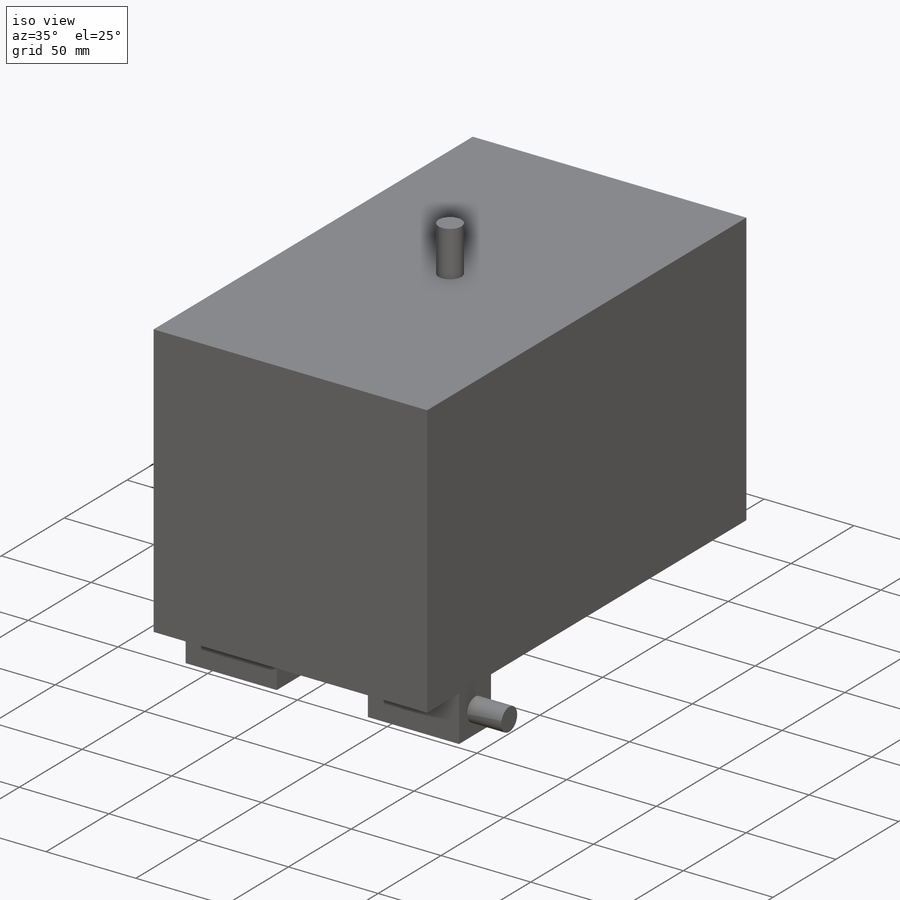
[diagram: iso view]
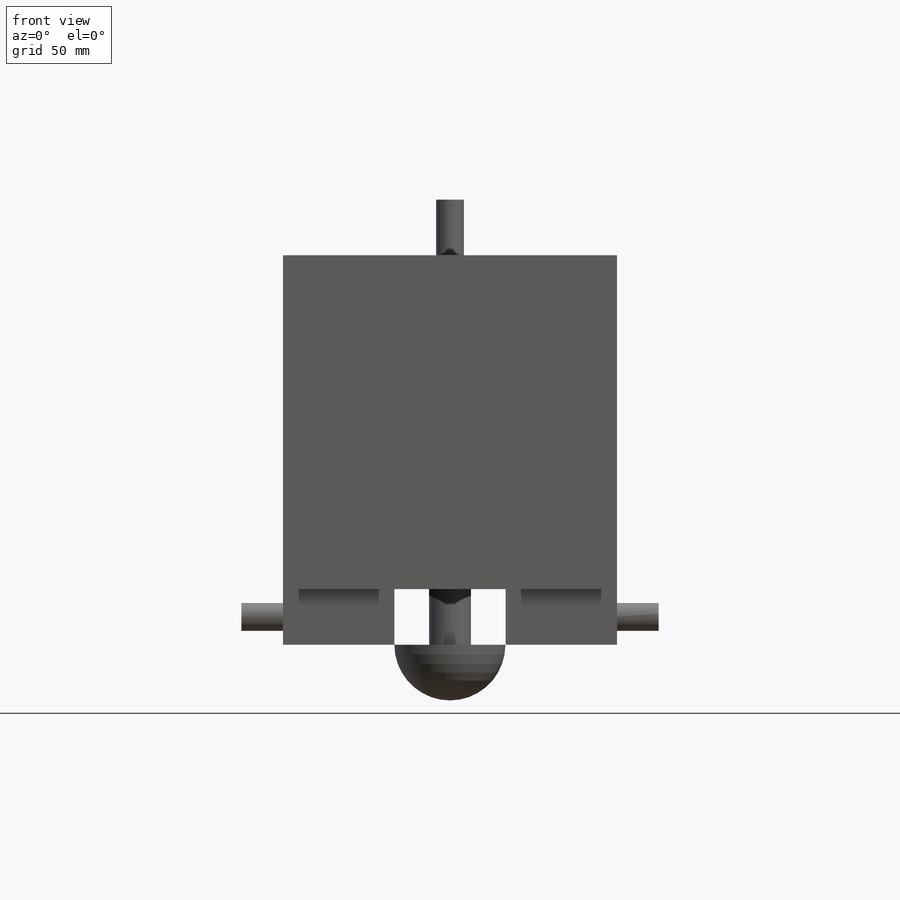
[diagram: front view]
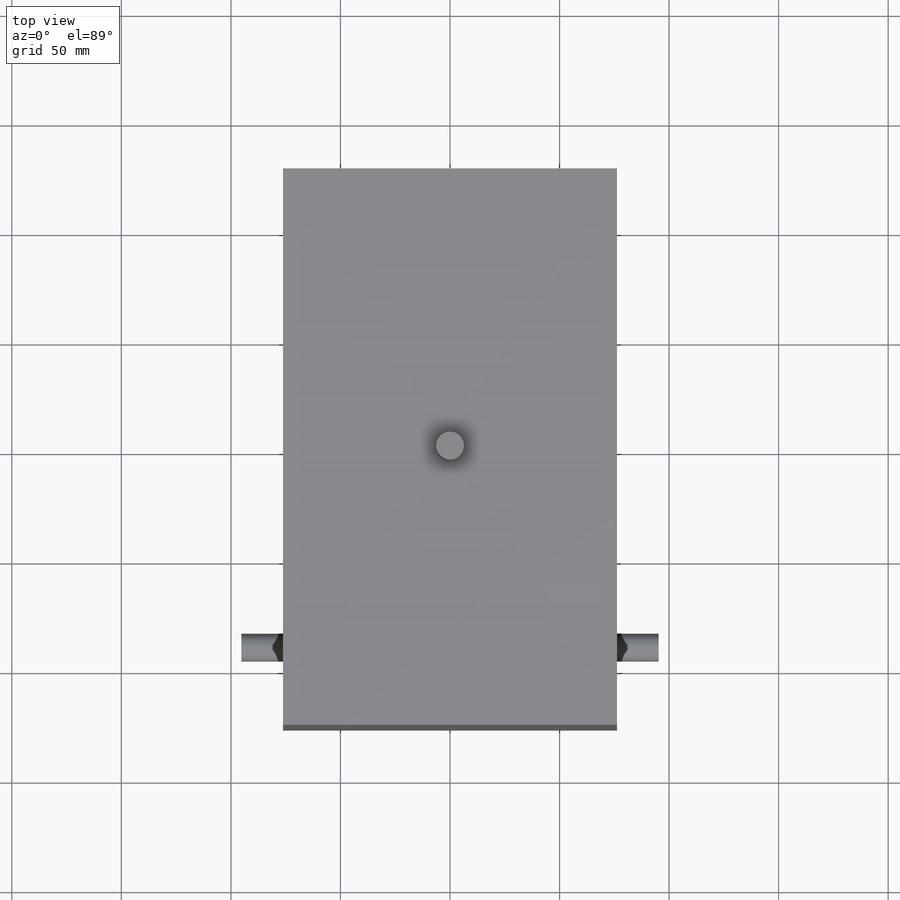
[diagram: top view]
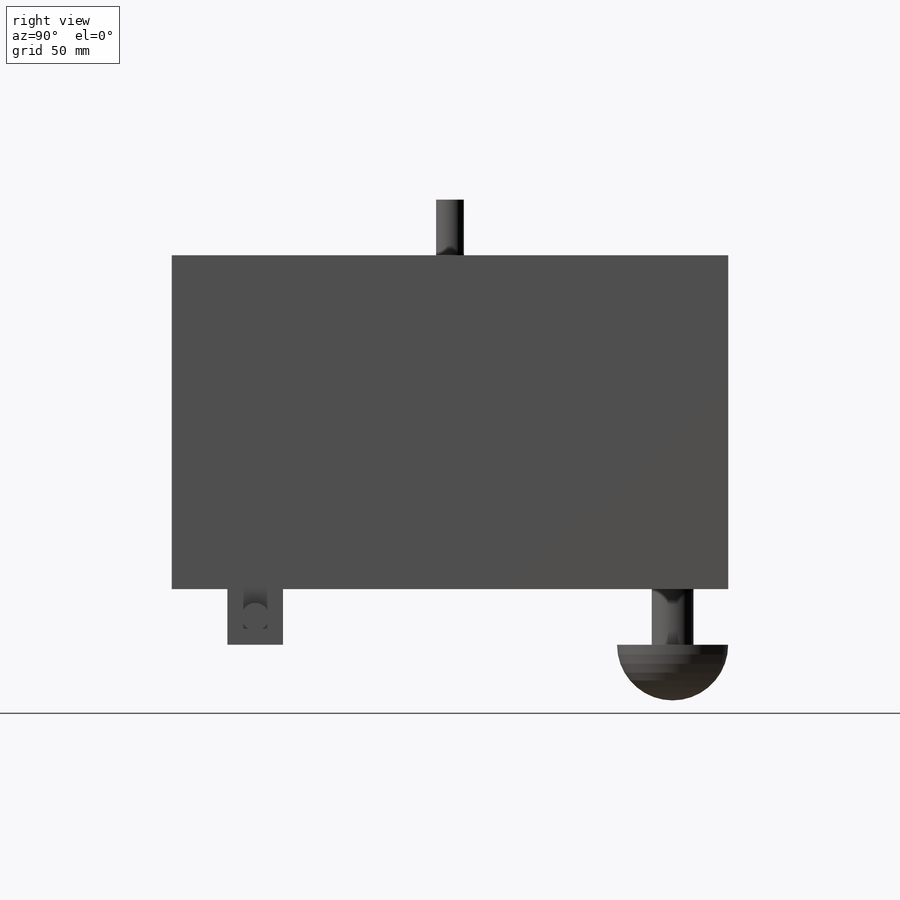
[diagram: right view]
SOLIDWORKS PART (.sldprt)
format: sldprt  version: not decoded by parser v0  size: 296,448 bytes
history: native  units: mm
features: sketch x8, extrude x7, plane x2, material x1, revolve x1 (+11 scaffold rows collapsed)
feature tree (30):
  scaffold x11  (default folders/planes/origin — collapsed)
  material  "6061-T6 (SS)"
  sketch  "Sketch1"  dims[D1=3.175mm D2=3.175mm D3=152.4mm]
  extrude  "Boss-Extrude1"  Depth=254mm
  sketch  "Sketch2"
  extrude  "Boss-Extrude2"  Depth=3.175mm
  sketch  "Sketch3"
  extrude  "Boss-Extrude3"  Depth=3.175mm
  sketch  "Sketch4"  dims[D1=25.4mm D2=25.4mm D3=50.8mm]
  extrude  "Boss-Extrude4"  Depth=25.4mm
  plane  "Plane1"  Offset=25.4mm
  sketch  "Sketch6"  dims[D1=9.525mm D2=50.8mm]
  revolve  "Revolve2"  Angle=360deg
  sketch  "Sketch7"  dims[D1=12.7mm]
  extrude  "Boss-Extrude5"  Depth=25.4mm
  sketch  "Sketch8"  dims[D1=12.7mm]
  extrude  "Boss-Extrude6"  Depth=19.05mm
  sketch  "Sketch9"  dims[D1=12.7mm]
  extrude  "Boss-Extrude7"  Depth=19.05mm
  plane  "Plane2"
decode coverage: 14 of 16 modeling features carry decoded parameters
note: suppression state not decoded; provenance and decode notes live in map.json
